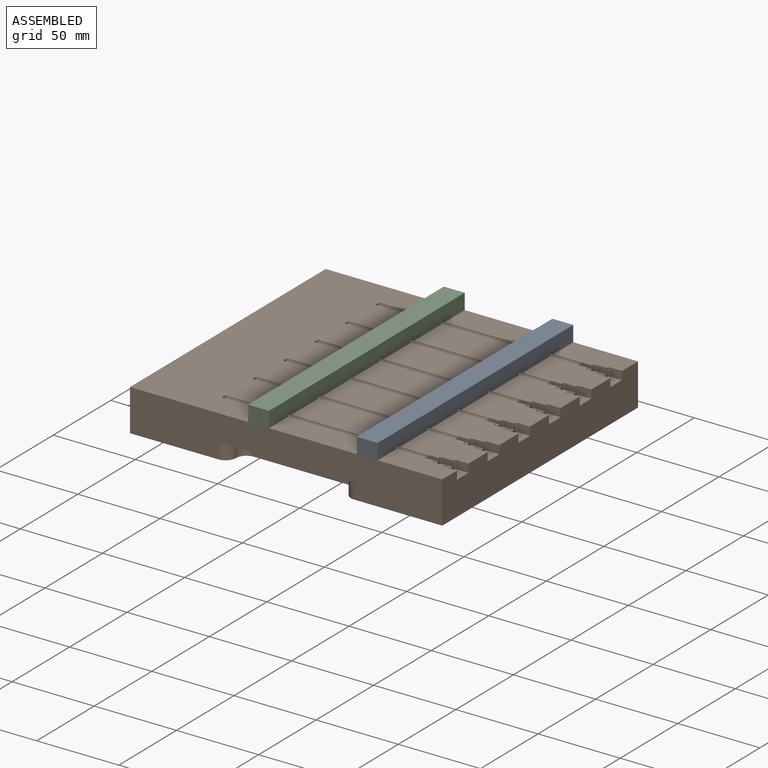
[diagram: assembled view]
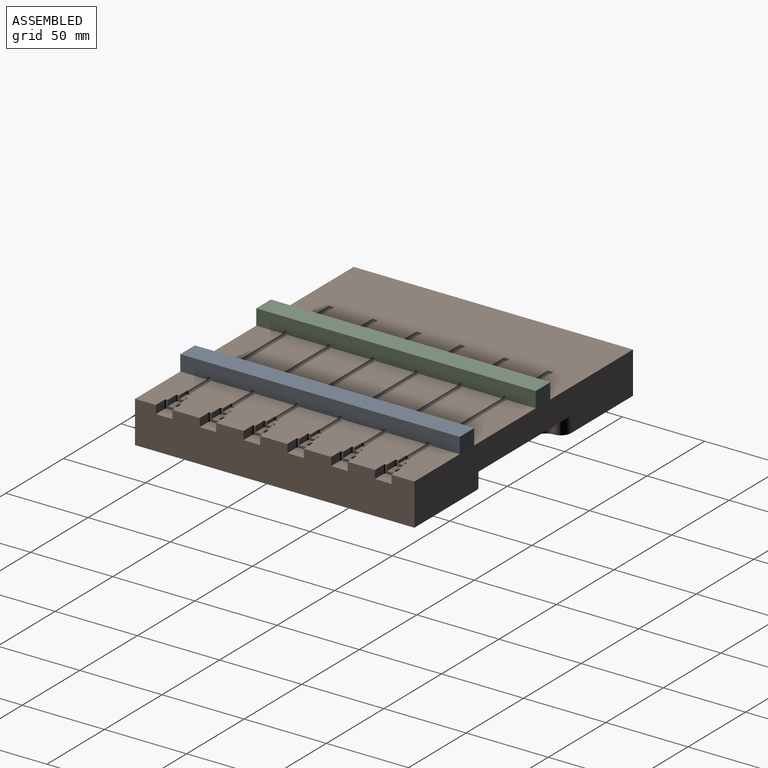
[diagram: assembled view, second angle]
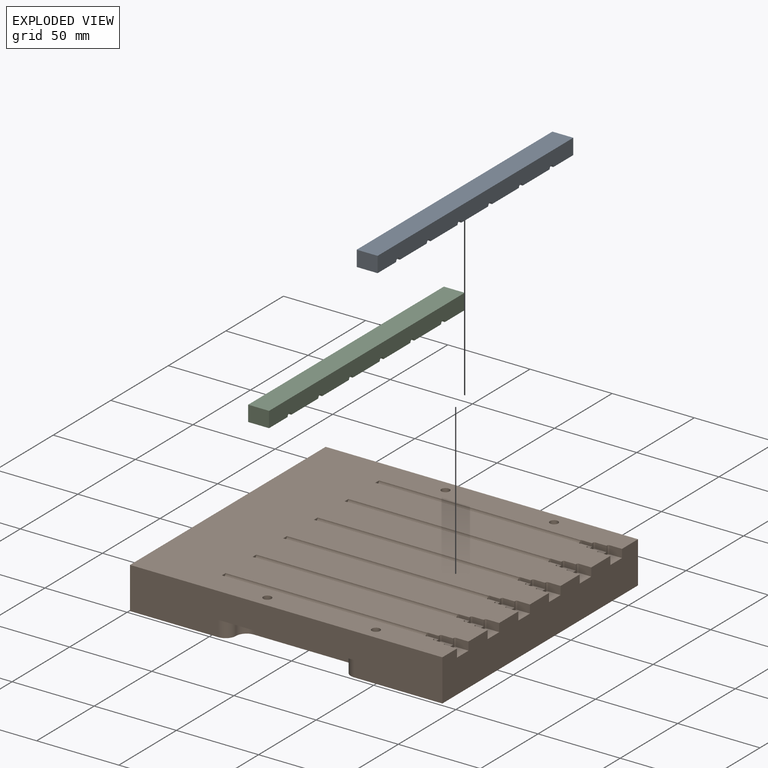
[diagram: exploded view]
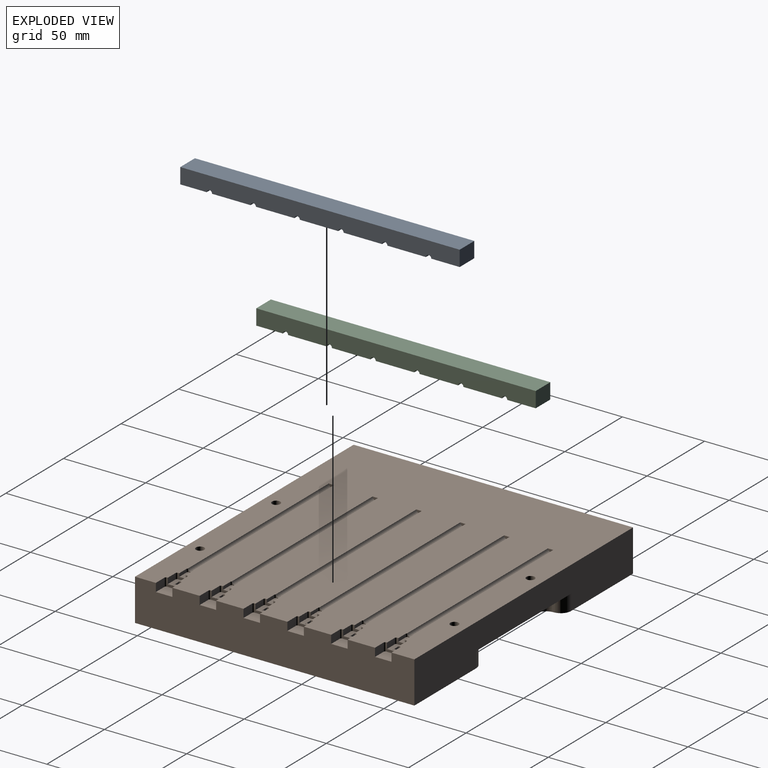
[diagram: exploded view, second angle]
ASSEMBLY  parts=3 mates=2
PART A: 22 faces, bbox 12.7x170x9.5 mm
  f0: plane 23.42x12.7mm, normal (0,0,-1), area 297.4mm2, adj f6,f8,f16,f17
  f1: plane 23.42x12.7mm, normal (0,0,-1), area 297.4mm2, adj f6,f8,f17,f18
  f2: plane 23.42x12.7mm, normal (0,0,-1), area 297.4mm2, adj f6,f8,f18,f19
  f3: plane 23.42x12.7mm, normal (0,0,-1), area 297.4mm2, adj f6,f8,f19,f20
  f4: plane 23.42x12.7mm, normal (0,0,-1), area 297.4mm2, adj f6,f8,f20,f21
  f5: plane 16.09x12.7mm, normal (0,0,-1), area 184.7mm2, adj f6,f7,f8,f14,f21
  f6: plane 170x9.53mm, normal (1,0,0), area 1594.3mm2, adj f0,f1,f2,f3,f4,f5,f7,f9
  f7: plane 12.7x9.53mm, normal (0,1,0), area 121mm2, adj f5,f6,f8,f10
  f8: plane 170x9.53mm, normal (-1,0,0), area 1594.3mm2, adj f0,f1,f2,f3,f4,f5,f7,f9
  f9: plane 12.7x9.53mm, normal (0,-1,0), area 121mm2, adj f6,f8,f10,f11
  f10: plane 170x12.7mm, normal (0,0,1), area 2159mm2, adj f6,f7,f8,f9
  f11: plane 17.31x12.7mm, normal (0,0,-1), area 200.2mm2, adj f6,f8,f9,f12,f16
  f12: cylinder r=2.5mm len=6.35mm, axis (0,0,-1), area 99.7mm2, adj f11,f13
  f13: plane 5x5mm, normal (0,0,-1), area 19.6mm2, adj f12
  f14: cylinder r=2.5mm len=6.35mm, axis (0,0,-1), area 99.7mm2, adj f5,f15
  f15: plane 5x5mm, normal (0,0,-1), area 19.6mm2, adj f14
  f16: cylinder r=1.63mm len=12.7mm, axis (1,0,0), area 64.9mm2, adj f0,f6,f8,f11
  f17: cylinder r=1.63mm len=12.7mm, axis (1,0,0), area 64.9mm2, adj f0,f1,f6,f8
  f18: cylinder r=1.63mm len=12.7mm, axis (1,0,0), area 64.9mm2, adj f1,f2,f6,f8
  f19: cylinder r=1.63mm len=12.7mm, axis (1,0,0), area 64.9mm2, adj f2,f3,f6,f8
  f20: cylinder r=1.63mm len=12.7mm, axis (1,0,0), area 64.9mm2, adj f3,f4,f6,f8
  f21: cylinder r=1.63mm len=12.7mm, axis (1,0,0), area 64.9mm2, adj f4,f5,f6,f8
PART B: 202 faces, bbox 190x25.4x170 mm
  f0: plane 5.65x3.56mm, normal (1,0,0), area 12mm2, adj f14,f32,f44,f67,f137,f140,f165,f166
  f1: plane 5.65x3.56mm, normal (1,0,0), area 12mm2, adj f13,f34,f44,f63,f141,f144,f163,f164
  f2: plane 5.65x3.56mm, normal (1,0,0), area 12mm2, adj f12,f36,f44,f59,f145,f148,f161,f162
  f3: plane 5.65x3.56mm, normal (1,0,0), area 12mm2, adj f11,f38,f44,f55,f149,f151,f159,f160
  f4: plane 5.65x3.56mm, normal (1,0,0), area 12mm2, adj f10,f40,f44,f51,f153,f156,f157,f158
  f5: plane 8.45x5.03mm, normal (1,0,0), area 17mm2, adj f14,f31,f44,f67,f122,f137,f138,f139
  f6: plane 8.45x5.03mm, normal (1,0,0), area 17mm2, adj f13,f33,f44,f63,f125,f141,f142,f143
  f7: plane 8.45x5.03mm, normal (1,0,0), area 17mm2, adj f12,f35,f44,f59,f128,f145,f146,f147
  f8: plane 8.45x5.03mm, normal (1,0,0), area 17mm2, adj f11,f37,f44,f55,f131,f149,f150,f151
  f9: plane 8.45x5.03mm, normal (1,0,0), area 17mm2, adj f10,f39,f44,f51,f134,f153,f154,f155
  f10: plane 7.62x3.1mm, normal (0,0,1), area 11.1mm2, adj f4,f9,f39,f40,f50,f52,f53,f156
  f11: plane 7.62x3.1mm, normal (0,0,1), area 11.1mm2, adj f3,f8,f37,f38,f54,f56,f57,f151
  f12: plane 7.62x3.1mm, normal (0,0,1), area 11.1mm2, adj f2,f7,f35,f36,f58,f60,f61,f148
  f13: plane 7.62x3.1mm, normal (0,0,1), area 11.1mm2, adj f1,f6,f33,f34,f62,f64,f65,f144
  f14: plane 7.62x3.1mm, normal (0,0,1), area 11.1mm2, adj f0,f5,f31,f32,f66,f68,f69,f140
  f15: plane 7.62x3.1mm, normal (0,0,1), area 11.1mm2, adj f41,f42,f43,f47,f48,f49,f71,f104
  f16: plane 7.62x3.1mm, normal (0,0,-1), area 11.1mm2, adj f41,f42,f43,f47,f48,f49,f71,f106
  f17: plane 190x25.4mm, normal (0,0,1), area 4039.7mm2, adj f18,f44,f45,f70,f87,f90,f93
  f18: plane 190x170mm, normal (0,1,0), area 30399.1mm2, adj f17,f45,f46,f70,f86,f88,f90,f91
  f19: plane 3.25x1.63mm, normal (1,0,0), area 4.2mm2, adj f44,f77
  f20: plane 3.25x1.63mm, normal (1,0,0), area 4.2mm2, adj f44,f76
  f21: plane 3.25x1.63mm, normal (1,0,0), area 4.2mm2, adj f44,f75
  f22: plane 3.25x1.63mm, normal (1,0,0), area 4.2mm2, adj f44,f74
  f23: plane 3.25x1.63mm, normal (1,0,0), area 4.2mm2, adj f44,f73
  f24: plane 3.25x1.63mm, normal (1,0,0), area 4.2mm2, adj f44,f72
  f25: plane 2.38x0.87mm, normal (1,0,0), area 1.2mm2, adj f72,f109,f112,f113
  f26: plane 2.38x0.87mm, normal (1,0,0), area 1.2mm2, adj f73,f157,f200,f201
  f27: plane 2.38x0.87mm, normal (1,0,0), area 1.2mm2, adj f74,f160,f198,f199
  f28: plane 2.38x0.87mm, normal (1,0,0), area 1.2mm2, adj f75,f161,f196,f197
  f29: plane 2.38x0.87mm, normal (1,0,0), area 1.2mm2, adj f76,f164,f194,f195
  f30: plane 2.38x0.87mm, normal (1,0,0), area 1.2mm2, adj f77,f165,f192,f193
  f31: plane 2.18x1.27mm, normal (0,-1,0), area 2.8mm2, adj f5,f14,f66,f67
  f32: plane 1.93x1.27mm, normal (0,-1,0), area 2.5mm2, adj f0,f14,f67,f68
  f33: plane 2.18x1.27mm, normal (0,-1,0), area 2.8mm2, adj f6,f13,f62,f63
  f34: plane 1.93x1.27mm, normal (0,-1,0), area 2.5mm2, adj f1,f13,f63,f64
  f35: plane 2.18x1.27mm, normal (0,-1,0), area 2.8mm2, adj f7,f12,f58,f59
  f36: plane 1.93x1.27mm, normal (0,-1,0), area 2.5mm2, adj f2,f12,f59,f60
  f37: plane 2.18x1.27mm, normal (0,-1,0), area 2.8mm2, adj f8,f11,f54,f55
  f38: plane 1.93x1.27mm, normal (0,-1,0), area 2.5mm2, adj f3,f11,f55,f56
  f39: plane 2.18x1.27mm, normal (0,-1,0), area 2.8mm2, adj f9,f10,f50,f51
  f40: plane 1.93x1.27mm, normal (0,-1,0), area 2.5mm2, adj f4,f10,f51,f52
  f41: plane 2.18x1.27mm, normal (0,-1,0), area 2.8mm2, adj f15,f16,f43,f47
  f42: plane 1.93x1.27mm, normal (0,-1,0), area 2.5mm2, adj f15,f16,f48,f71
  f43: plane 8.45x5.03mm, normal (1,0,0), area 17mm2, adj f15,f16,f41,f44,f100,f101,f102,f103
  f44: plane 190x170mm, normal (0,-1,0), area 28835.7mm2, adj f0,f1,f2,f3,f4,f5,f6,f7
  f45: plane 170x25.4mm, normal (-1,0,0), area 4318mm2, adj f17,f18,f44,f46
  f46: plane 190x25.4mm, normal (0,0,-1), area 4039.7mm2, adj f18,f44,f45,f70,f89,f95,f96
  f47: plane 3.05x1.27mm, normal (-1,0,0), area 3.9mm2, adj f15,f16,f41,f49
  f48: plane 3.05x1.27mm, normal (1,0,0), area 3.9mm2, adj f15,f16,f42,f49
  f49: plane 3.51x1.27mm, normal (0,-1,0), area 4.5mm2, adj f15,f16,f47,f48
  f50: plane 3.05x1.27mm, normal (-1,0,0), area 3.9mm2, adj f10,f39,f51,f53
  f51: plane 7.62x3.1mm, normal (0,0,-1), area 11.1mm2, adj f4,f9,f39,f40,f50,f52,f53,f153
  f52: plane 3.05x1.27mm, normal (1,0,0), area 3.9mm2, adj f10,f40,f51,f53
  f53: plane 3.51x1.27mm, normal (0,-1,0), area 4.5mm2, adj f10,f50,f51,f52
  f54: plane 3.05x1.27mm, normal (-1,0,0), area 3.9mm2, adj f11,f37,f55,f57
  f55: plane 7.62x3.1mm, normal (0,0,-1), area 11.1mm2, adj f3,f8,f37,f38,f54,f56,f57,f149
  f56: plane 3.05x1.27mm, normal (1,0,0), area 3.9mm2, adj f11,f38,f55,f57
  f57: plane 3.51x1.27mm, normal (0,-1,0), area 4.5mm2, adj f11,f54,f55,f56
  f58: plane 3.05x1.27mm, normal (-1,0,0), area 3.9mm2, adj f12,f35,f59,f61
  f59: plane 7.62x3.1mm, normal (0,0,-1), area 11.1mm2, adj f2,f7,f35,f36,f58,f60,f61,f145
  f60: plane 3.05x1.27mm, normal (1,0,0), area 3.9mm2, adj f12,f36,f59,f61
  f61: plane 3.51x1.27mm, normal (0,-1,0), area 4.5mm2, adj f12,f58,f59,f60
  f62: plane 3.05x1.27mm, normal (-1,0,0), area 3.9mm2, adj f13,f33,f63,f65
  f63: plane 7.62x3.1mm, normal (0,0,-1), area 11.1mm2, adj f1,f6,f33,f34,f62,f64,f65,f141
  f64: plane 3.05x1.27mm, normal (1,0,0), area 3.9mm2, adj f13,f34,f63,f65
  f65: plane 3.51x1.27mm, normal (0,-1,0), area 4.5mm2, adj f13,f62,f63,f64
  f66: plane 3.05x1.27mm, normal (-1,0,0), area 3.9mm2, adj f14,f31,f67,f69
  f67: plane 7.62x3.1mm, normal (0,0,-1), area 11.1mm2, adj f0,f5,f31,f32,f66,f68,f69,f137
  f68: plane 3.05x1.27mm, normal (1,0,0), area 3.9mm2, adj f14,f32,f67,f69
  f69: plane 3.51x1.27mm, normal (0,-1,0), area 4.5mm2, adj f14,f66,f67,f68
  f70: plane 170x25.4mm, normal (1,0,0), area 4015.3mm2, adj f17,f18,f44,f46,f98,f99,f100,f122
  f71: plane 5.65x3.56mm, normal (1,0,0), area 12mm2, adj f15,f16,f42,f44,f104,f106,f107,f108
  f72: cylinder r=1.63mm len=122.43mm, axis (1,0,0), area 624.8mm2, adj f24,f25,f44,f112,f113
  f73: cylinder r=1.63mm len=122.43mm, axis (1,0,0), area 624.8mm2, adj f23,f26,f44,f200,f201
  f74: cylinder r=1.63mm len=122.43mm, axis (1,0,0), area 624.8mm2, adj f22,f27,f44,f198,f199
  f75: cylinder r=1.63mm len=122.43mm, axis (1,0,0), area 624.8mm2, adj f21,f28,f44,f196,f197
  f76: cylinder r=1.63mm len=122.43mm, axis (1,0,0), area 624.8mm2, adj f20,f29,f44,f194,f195
  f77: cylinder r=1.63mm len=122.43mm, axis (1,0,0), area 624.8mm2, adj f19,f30,f44,f192,f193
  f78: cylinder r=2.5mm len=6.35mm, axis (0,-1,0), area 99.7mm2, adj f44,f79
  f79: plane 5x5mm, normal (0,-1,0), area 19.6mm2, adj f78
  f80: cylinder r=2.5mm len=6.35mm, axis (0,-1,0), area 99.7mm2, adj f44,f81
  f81: plane 5x5mm, normal (0,-1,0), area 19.6mm2, adj f80
  f82: cylinder r=2.5mm len=6.35mm, axis (0,-1,0), area 99.7mm2, adj f44,f83
  f83: plane 5x5mm, normal (0,-1,0), area 19.6mm2, adj f82
  f84: cylinder r=2.5mm len=6.35mm, axis (0,-1,0), area 99.7mm2, adj f44,f85
  f85: plane 5x5mm, normal (0,-1,0), area 19.6mm2, adj f84
  f86: plane 57.15x9.53mm, normal (0,0,1), area 544.4mm2, adj f18,f87,f91,f92
  f87: plane 82.55x12.7mm, normal (0,1,0), area 887.1mm2, adj f17,f86,f90,f91,f92,f93
  f88: plane 57.15x9.53mm, normal (0,0,-1), area 544.4mm2, adj f18,f89,f94,f97
  f89: plane 82.55x12.7mm, normal (0,1,0), area 887.1mm2, adj f46,f88,f94,f95,f96,f97
  f90: cylinder r=6.35mm len=9.53mm, axis (0,-1,0), area 95mm2, adj f17,f18,f87,f91
  f91: cylinder r=6.35mm len=9.53mm, axis (0,1,0), area 95mm2, adj f18,f86,f87,f90
  f92: cylinder r=6.35mm len=9.53mm, axis (0,-1,0), area 95mm2, adj f18,f86,f87,f93
  f93: cylinder r=6.35mm len=9.53mm, axis (0,1,0), area 95mm2, adj f17,f18,f87,f92
  f94: cylinder r=6.35mm len=9.53mm, axis (0,1,0), area 95mm2, adj f18,f88,f89,f95
  f95: cylinder r=6.35mm len=9.53mm, axis (0,-1,0), area 95mm2, adj f18,f46,f89,f94
  f96: cylinder r=6.35mm len=9.53mm, axis (0,1,0), area 95mm2, adj f18,f46,f89,f97
  f97: cylinder r=6.35mm len=9.53mm, axis (0,-1,0), area 95mm2, adj f18,f88,f89,f96
  f98: plane 7.59x5.03mm, normal (0,0,-1), area 38.2mm2, adj f44,f70,f100,f102
  f99: plane 7.59x5.03mm, normal (0,0,1), area 38.2mm2, adj f44,f70,f100,f101
  f100: plane 10.03x8.38mm, normal (0,-1,0), area 83.8mm2, adj f43,f70,f98,f99,f101,f102
  f101: cylinder r=0.79mm len=5.03mm, axis (0,1,0), area 6.3mm2, adj f43,f44,f99,f100
  f102: cylinder r=0.79mm len=5.03mm, axis (0,1,0), area 6.3mm2, adj f43,f44,f98,f100
  f103: plane 6.83x3.51mm, normal (0,0,1), area 23.9mm2, adj f43,f44,f104,f107
  f104: plane 7.62x2.98mm, normal (0,-1,0), area 22.6mm2, adj f15,f43,f71,f103,f107
  f105: plane 6.83x3.51mm, normal (0,0,-1), area 23.9mm2, adj f43,f44,f106,f108
  f106: plane 7.62x2.98mm, normal (0,-1,0), area 22.6mm2, adj f16,f43,f71,f105,f108
  f107: cylinder r=0.79mm len=3.51mm, axis (0,-1,0), area 4.4mm2, adj f44,f71,f103,f104
  f108: cylinder r=0.79mm len=3.51mm, axis (0,-1,0), area 4.4mm2, adj f44,f71,f105,f106
  f109: plane 7.11x3.96mm, normal (0,-1,0), area 27.9mm2, adj f25,f71,f110,f111,f112,f113
  f110: plane 6.32x1.98mm, normal (0,0,-1), area 12.5mm2, adj f44,f71,f109,f113
  f111: plane 6.32x1.98mm, normal (0,0,1), area 12.5mm2, adj f44,f71,f109,f112
  f112: cylinder r=0.79mm len=1.98mm, axis (0,1,0), area 2.1mm2, adj f25,f44,f72,f109,f111
  f113: cylinder r=0.79mm len=1.98mm, axis (0,1,0), area 2.1mm2, adj f25,f44,f72,f109,f110
  f114: cylinder r=3.17mm len=12.7mm, axis (0,1,0), area 253.4mm2, adj f18,f115
  f115: plane 6.35x6.35mm, normal (0,1,0), area 31.7mm2, adj f114
  f116: cylinder r=3.17mm len=12.7mm, axis (0,1,0), area 253.4mm2, adj f18,f117
  f117: plane 6.35x6.35mm, normal (0,1,0), area 31.7mm2, adj f116
  f118: cylinder r=3.17mm len=12.7mm, axis (0,1,0), area 253.4mm2, adj f18,f119
  f119: plane 6.35x6.35mm, normal (0,1,0), area 31.7mm2, adj f118
  f120: cylinder r=3.17mm len=12.7mm, axis (0,1,0), area 253.4mm2, adj f18,f121
  f121: plane 6.35x6.35mm, normal (0,1,0), area 31.7mm2, adj f120
  f122: plane 10.03x8.38mm, normal (0,-1,0), area 83.8mm2, adj f5,f70,f123,f124,f182,f183
  f123: plane 7.59x5.03mm, normal (0,0,-1), area 38.2mm2, adj f44,f70,f122,f182
  f124: plane 7.59x5.03mm, normal (0,0,1), area 38.2mm2, adj f44,f70,f122,f183
  f125: plane 10.03x8.38mm, normal (0,-1,0), area 83.8mm2, adj f6,f70,f126,f127,f184,f185
  f126: plane 7.59x5.03mm, normal (0,0,-1), area 38.2mm2, adj f44,f70,f125,f184
  f127: plane 7.59x5.03mm, normal (0,0,1), area 38.2mm2, adj f44,f70,f125,f185
  f128: plane 10.03x8.38mm, normal (0,-1,0), area 83.8mm2, adj f7,f70,f129,f130,f186,f187
  f129: plane 7.59x5.03mm, normal (0,0,-1), area 38.2mm2, adj f44,f70,f128,f186
  f130: plane 7.59x5.03mm, normal (0,0,1), area 38.2mm2, adj f44,f70,f128,f187
  f131: plane 10.03x8.38mm, normal (0,-1,0), area 83.8mm2, adj f8,f70,f132,f133,f188,f189
  f132: plane 7.59x5.03mm, normal (0,0,-1), area 38.2mm2, adj f44,f70,f131,f188
  f133: plane 7.59x5.03mm, normal (0,0,1), area 38.2mm2, adj f44,f70,f131,f189
  f134: plane 10.03x8.38mm, normal (0,-1,0), area 83.8mm2, adj f9,f70,f135,f136,f190,f191
  f135: plane 7.59x5.03mm, normal (0,0,-1), area 38.2mm2, adj f44,f70,f134,f190
  f136: plane 7.59x5.03mm, normal (0,0,1), area 38.2mm2, adj f44,f70,f134,f191
  f137: plane 7.62x2.98mm, normal (0,-1,0), area 22.6mm2, adj f0,f5,f67,f138,f173
  f138: plane 6.83x3.51mm, normal (0,0,-1), area 23.9mm2, adj f5,f44,f137,f173
  f139: plane 6.83x3.51mm, normal (0,0,1), area 23.9mm2, adj f5,f44,f140,f172
  f140: plane 7.62x2.98mm, normal (0,-1,0), area 22.6mm2, adj f0,f5,f14,f139,f172
  f141: plane 7.62x2.98mm, normal (0,-1,0), area 22.6mm2, adj f1,f6,f63,f142,f174
  f142: plane 6.83x3.51mm, normal (0,0,-1), area 23.9mm2, adj f6,f44,f141,f174
  f143: plane 6.83x3.51mm, normal (0,0,1), area 23.9mm2, adj f6,f44,f144,f175
  f144: plane 7.62x2.98mm, normal (0,-1,0), area 22.6mm2, adj f1,f6,f13,f143,f175
  f145: plane 7.62x2.98mm, normal (0,-1,0), area 22.6mm2, adj f2,f7,f59,f146,f176
  f146: plane 6.83x3.51mm, normal (0,0,-1), area 23.9mm2, adj f7,f44,f145,f176
  f147: plane 6.83x3.51mm, normal (0,0,1), area 23.9mm2, adj f7,f44,f148,f177
  f148: plane 7.62x2.98mm, normal (0,-1,0), area 22.6mm2, adj f2,f7,f12,f147,f177
  f149: plane 7.62x2.98mm, normal (0,-1,0), area 22.6mm2, adj f3,f8,f55,f150,f178
  f150: plane 6.83x3.51mm, normal (0,0,-1), area 23.9mm2, adj f8,f44,f149,f178
  f151: plane 7.62x2.98mm, normal (0,-1,0), area 22.6mm2, adj f3,f8,f11,f152,f179
  f152: plane 6.83x3.51mm, normal (0,0,1), area 23.9mm2, adj f8,f44,f151,f179
  f153: plane 7.62x2.98mm, normal (0,-1,0), area 22.6mm2, adj f4,f9,f51,f154,f180
  f154: plane 6.83x3.51mm, normal (0,0,-1), area 23.9mm2, adj f9,f44,f153,f180
  f155: plane 6.83x3.51mm, normal (0,0,1), area 23.9mm2, adj f9,f44,f156,f181
  f156: plane 7.62x2.98mm, normal (0,-1,0), area 22.6mm2, adj f4,f9,f10,f155,f181
  f157: plane 7.11x3.96mm, normal (0,-1,0), area 27.9mm2, adj f4,f26,f158,f167,f200,f201
  f158: plane 6.32x1.98mm, normal (0,0,-1), area 12.5mm2, adj f4,f44,f157,f201
  f159: plane 6.32x1.98mm, normal (0,0,1), area 12.5mm2, adj f3,f44,f160,f198
  f160: plane 7.11x3.96mm, normal (0,-1,0), area 27.9mm2, adj f3,f27,f159,f168,f198,f199
  f161: plane 7.11x3.96mm, normal (0,-1,0), area 27.9mm2, adj f2,f28,f162,f169,f196,f197
  f162: plane 6.32x1.98mm, normal (0,0,-1), area 12.5mm2, adj f2,f44,f161,f197
  f163: plane 6.32x1.98mm, normal (0,0,1), area 12.5mm2, adj f1,f44,f164,f194
  f164: plane 7.11x3.96mm, normal (0,-1,0), area 27.9mm2, adj f1,f29,f163,f170,f194,f195
  f165: plane 7.11x3.96mm, normal (0,-1,0), area 27.9mm2, adj f0,f30,f166,f171,f192,f193
  f166: plane 6.32x1.98mm, normal (0,0,-1), area 12.5mm2, adj f0,f44,f165,f193
  f167: plane 6.32x1.98mm, normal (0,0,1), area 12.5mm2, adj f4,f44,f157,f200
  f168: plane 6.32x1.98mm, normal (0,0,-1), area 12.5mm2, adj f3,f44,f160,f199
  f169: plane 6.32x1.98mm, normal (0,0,1), area 12.5mm2, adj f2,f44,f161,f196
  f170: plane 6.32x1.98mm, normal (0,0,-1), area 12.5mm2, adj f1,f44,f164,f195
  f171: plane 6.32x1.98mm, normal (0,0,1), area 12.5mm2, adj f0,f44,f165,f192
  f172: cylinder r=0.79mm len=3.51mm, axis (0,1,0), area 4.4mm2, adj f0,f44,f139,f140
  f173: cylinder r=0.79mm len=3.51mm, axis (0,-1,0), area 4.4mm2, adj f0,f44,f137,f138
  f174: cylinder r=0.79mm len=3.51mm, axis (0,-1,0), area 4.4mm2, adj f1,f44,f141,f142
  f175: cylinder r=0.79mm len=3.51mm, axis (0,1,0), area 4.4mm2, adj f1,f44,f143,f144
  f176: cylinder r=0.79mm len=3.51mm, axis (0,-1,0), area 4.4mm2, adj f2,f44,f145,f146
  f177: cylinder r=0.79mm len=3.51mm, axis (0,1,0), area 4.4mm2, adj f2,f44,f147,f148
  f178: cylinder r=0.79mm len=3.51mm, axis (0,-1,0), area 4.4mm2, adj f3,f44,f149,f150
  f179: cylinder r=0.79mm len=3.51mm, axis (0,1,0), area 4.4mm2, adj f3,f44,f151,f152
  f180: cylinder r=0.79mm len=3.51mm, axis (0,-1,0), area 4.4mm2, adj f4,f44,f153,f154
  f181: cylinder r=0.79mm len=3.51mm, axis (0,1,0), area 4.4mm2, adj f4,f44,f155,f156
  f182: cylinder r=0.79mm len=5.03mm, axis (0,1,0), area 6.3mm2, adj f5,f44,f122,f123
  f183: cylinder r=0.79mm len=5.03mm, axis (0,-1,0), area 6.3mm2, adj f5,f44,f122,f124
  f184: cylinder r=0.79mm len=5.03mm, axis (0,1,0), area 6.3mm2, adj f6,f44,f125,f126
  f185: cylinder r=0.79mm len=5.03mm, axis (0,-1,0), area 6.3mm2, adj f6,f44,f125,f127
  f186: cylinder r=0.79mm len=5.03mm, axis (0,1,0), area 6.3mm2, adj f7,f44,f128,f129
  f187: cylinder r=0.79mm len=5.03mm, axis (0,-1,0), area 6.3mm2, adj f7,f44,f128,f130
  f188: cylinder r=0.79mm len=5.03mm, axis (0,1,0), area 6.3mm2, adj f8,f44,f131,f132
  f189: cylinder r=0.79mm len=5.03mm, axis (0,-1,0), area 6.3mm2, adj f8,f44,f131,f133
  f190: cylinder r=0.79mm len=5.03mm, axis (0,1,0), area 6.3mm2, adj f9,f44,f134,f135
  f191: cylinder r=0.79mm len=5.03mm, axis (0,-1,0), area 6.3mm2, adj f9,f44,f134,f136
  f192: cylinder r=0.79mm len=1.98mm, axis (0,-1,0), area 2.1mm2, adj f30,f44,f77,f165,f171
  f193: cylinder r=0.79mm len=1.98mm, axis (0,1,0), area 2.1mm2, adj f30,f44,f77,f165,f166
  f194: cylinder r=0.79mm len=1.98mm, axis (0,-1,0), area 2.1mm2, adj f29,f44,f76,f163,f164
  f195: cylinder r=0.79mm len=1.98mm, axis (0,1,0), area 2.1mm2, adj f29,f44,f76,f164,f170
  f196: cylinder r=0.79mm len=1.98mm, axis (0,-1,0), area 2.1mm2, adj f28,f44,f75,f161,f169
  f197: cylinder r=0.79mm len=1.98mm, axis (0,1,0), area 2.1mm2, adj f28,f44,f75,f161,f162
  f198: cylinder r=0.79mm len=1.98mm, axis (0,-1,0), area 2.1mm2, adj f27,f44,f74,f159,f160
  f199: cylinder r=0.79mm len=1.98mm, axis (0,1,0), area 2.1mm2, adj f27,f44,f74,f160,f168
  f200: cylinder r=0.79mm len=1.98mm, axis (0,-1,0), area 2.1mm2, adj f26,f44,f73,f157,f167
  f201: cylinder r=0.79mm len=1.98mm, axis (0,1,0), area 2.1mm2, adj f26,f44,f73,f157,f158
PART C: same geometry as A
PLACE A rot(axis=(0,0,1),180deg) t=(49.44,-19.83,48.01)mm
PLACE B rot(axis=(-1,0,0),90deg) t=(-4.84,-19.83,22.61)mm
PLACE C rot(axis=(0,0,1),180deg) t=(-16.6,-19.83,48.01)mm
MATE pin_slot A.f12 <-> B.f82  axis (0,0,-1) through (49.44,57.55,48.01)mm
MATE pin_slot C.f12 <-> B.f84  axis (0,0,-1) through (-16.6,57.55,48.01)mm
